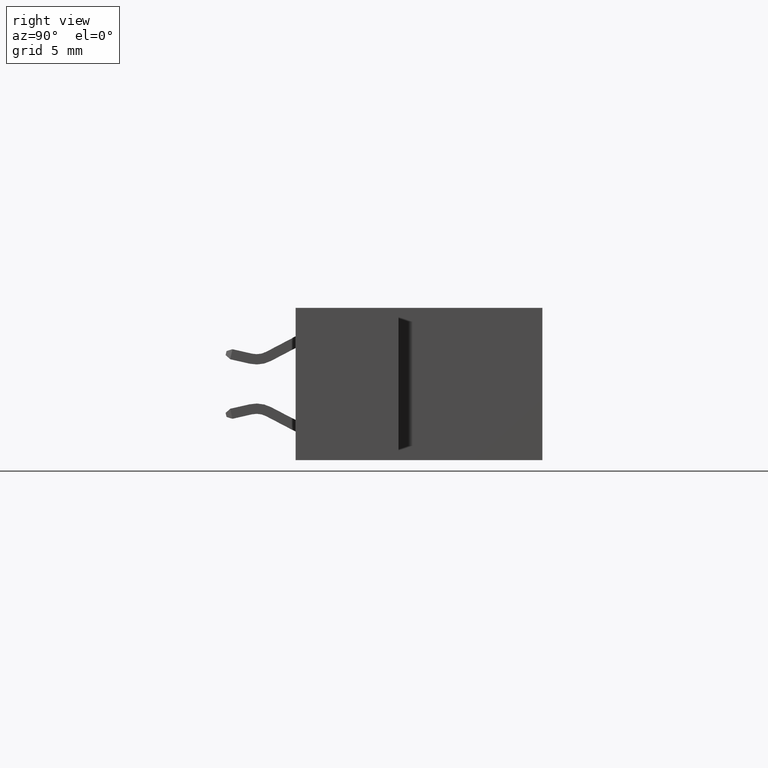
[diagram: clean part render]
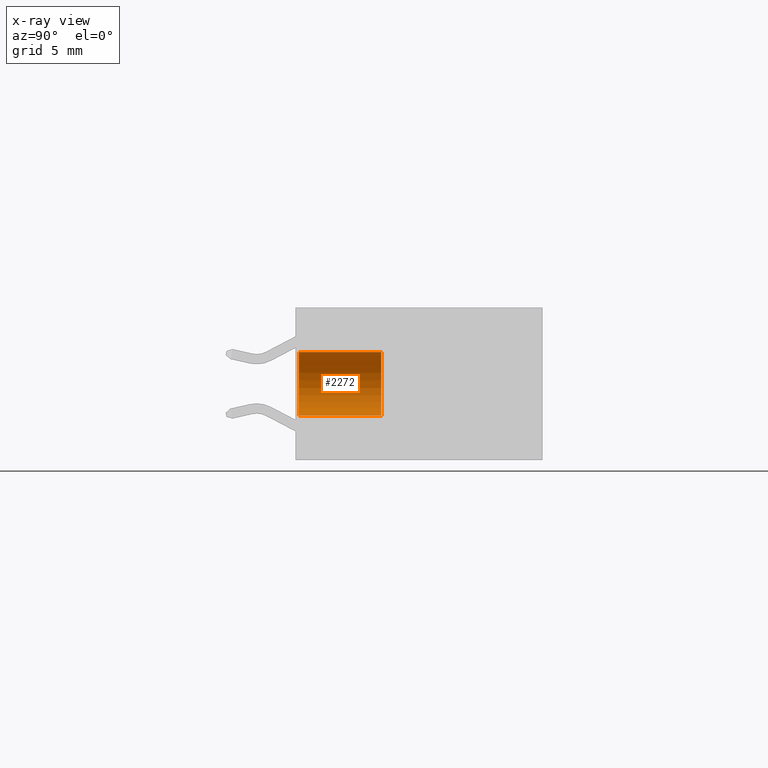
[diagram: x-ray — body ghosted, one internal face saturated and labeled with its STEP entity id]
A machine part, right view, then the same camera in x-ray: the body is ghosted and one INTERNAL B-rep face — a face not visible from any outside direction — is saturated and labeled: STEP entity #2272.
In plain terms, the highlighted cylindrical surface (edge-blend (fillet) strip) has radius 1.9685 mm, axis along (0, 1, 0).
Its self-contained STEP definition (entity closure, byte-faithful):
#424 = CARTESIAN_POINT ( 'NONE',  ( 0.0000000000000000000, 0.2400000000000000500, 0.0000000000000000000 ) ) ;
#457 = CIRCLE ( 'NONE', #1784, 0.07750000000000005500 ) ;
#681 = DIRECTION ( 'NONE',  ( 0.0000000000000000000, 1.000000000000000000, 0.0000000000000000000 ) ) ;
#810 = CARTESIAN_POINT ( 'NONE',  ( 9.491012693391986400E-018, 0.03999999999999998000, 0.07749999999999999900 ) ) ;
#1123 = CIRCLE ( 'NONE', #2988, 0.07750000000000005500 ) ;
#1784 = AXIS2_PLACEMENT_3D ( 'NONE', #6196, #681, #3129 ) ;
#1828 = LINE ( 'NONE', #4692, #8922 ) ;
#1980 = CARTESIAN_POINT ( 'NONE',  ( 9.491012693391986400E-018, 0.2400000000000000500, 0.07749999999999999900 ) ) ;
#2091 = ORIENTED_EDGE ( 'NONE', *, *, #7549, .F. ) ;
#2272 = ADVANCED_FACE ( 'NONE', ( #8260 ), #3873, .T. ) ;
#2545 = LINE ( 'NONE', #5375, #8042 ) ;
#2853 = EDGE_CURVE ( 'NONE', #6560, #3746, #457, .T. ) ;
#2988 = AXIS2_PLACEMENT_3D ( 'NONE', #8003, #8764, #4078 ) ;
#3129 = DIRECTION ( 'NONE',  ( 0.0000000000000000000, 0.0000000000000000000, 1.000000000000000000 ) ) ;
#3572 = ORIENTED_EDGE ( 'NONE', *, *, #2853, .F. ) ;
#3746 = VERTEX_POINT ( 'NONE', #7816 ) ;
#3840 = DIRECTION ( 'NONE',  ( 0.0000000000000000000, -1.000000000000000000, 0.0000000000000000000 ) ) ;
#3873 = CYLINDRICAL_SURFACE ( 'NONE', #4004, 0.07750000000000005500 ) ;
#4004 = AXIS2_PLACEMENT_3D ( 'NONE', #424, #9883, #9113 ) ;
#4078 = DIRECTION ( 'NONE',  ( 0.0000000000000000000, 0.0000000000000000000, 1.000000000000000000 ) ) ;
#4266 = ORIENTED_EDGE ( 'NONE', *, *, #7351, .T. ) ;
#4352 = EDGE_LOOP ( 'NONE', ( #3572, #4266, #8250, #2091 ) ) ;
#4692 = CARTESIAN_POINT ( 'NONE',  ( 9.491012693391994100E-018, 0.2400000000000000500, 0.07750000000000005500 ) ) ;
#5375 = CARTESIAN_POINT ( 'NONE',  ( 0.0000000000000000000, 0.2400000000000000500, -0.07750000000000005500 ) ) ;
#5376 = CARTESIAN_POINT ( 'NONE',  ( 0.0000000000000000000, 0.03999999999999998000, -0.07749999999999999900 ) ) ;
#5654 = VERTEX_POINT ( 'NONE', #810 ) ;
#5830 = EDGE_CURVE ( 'NONE', #5654, #6062, #1123, .T. ) ;
#6062 = VERTEX_POINT ( 'NONE', #5376 ) ;
#6196 = CARTESIAN_POINT ( 'NONE',  ( 0.0000000000000000000, 0.2400000000000000500, 0.0000000000000000000 ) ) ;
#6560 = VERTEX_POINT ( 'NONE', #1980 ) ;
#7351 = EDGE_CURVE ( 'NONE', #6560, #5654, #1828, .T. ) ;
#7549 = EDGE_CURVE ( 'NONE', #3746, #6062, #2545, .T. ) ;
#7816 = CARTESIAN_POINT ( 'NONE',  ( 0.0000000000000000000, 0.2400000000000000500, -0.07749999999999999900 ) ) ;
#7841 = DIRECTION ( 'NONE',  ( 0.0000000000000000000, -1.000000000000000000, 0.0000000000000000000 ) ) ;
#8003 = CARTESIAN_POINT ( 'NONE',  ( 0.0000000000000000000, 0.03999999999999998000, 0.0000000000000000000 ) ) ;
#8042 = VECTOR ( 'NONE', #3840, 39.37007874015748100 ) ;
#8250 = ORIENTED_EDGE ( 'NONE', *, *, #5830, .T. ) ;
#8260 = FACE_OUTER_BOUND ( 'NONE', #4352, .T. ) ;
#8764 = DIRECTION ( 'NONE',  ( 0.0000000000000000000, 1.000000000000000000, 0.0000000000000000000 ) ) ;
#8922 = VECTOR ( 'NONE', #7841, 39.37007874015748100 ) ;
#9113 = DIRECTION ( 'NONE',  ( 0.0000000000000000000, 0.0000000000000000000, -1.000000000000000000 ) ) ;
#9883 = DIRECTION ( 'NONE',  ( 0.0000000000000000000, -1.000000000000000000, 0.0000000000000000000 ) ) ;